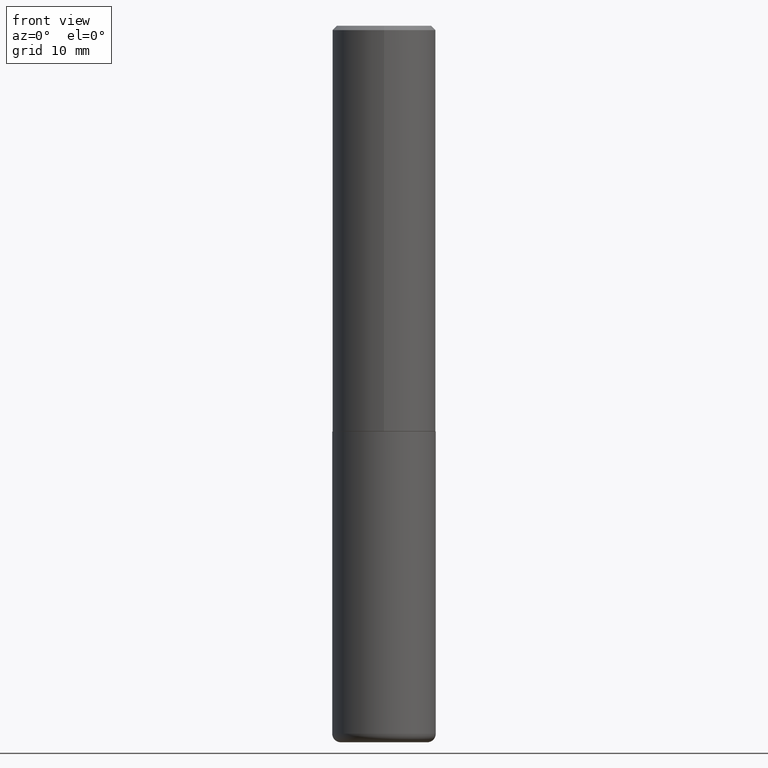
[diagram: clean part render]
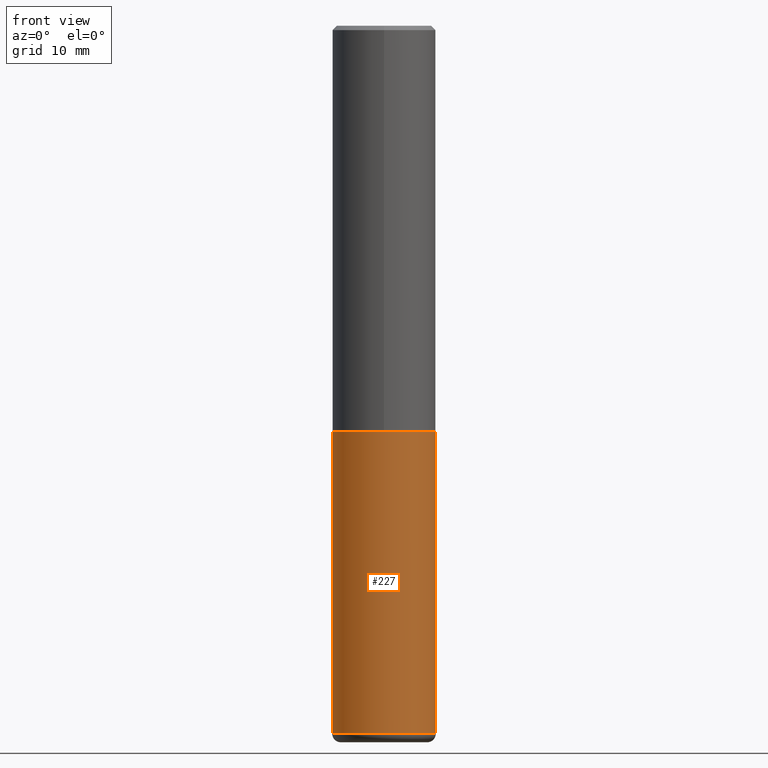
[diagram: same view with one face highlighted and labeled with its STEP entity id]
A machine part, front view. The second image highlights one B-rep face of the part: STEP entity #227.
In plain terms, the highlighted cylindrical surface (partial cylindrical patch) has radius 5.9995 mm, axis along (-0, 0, 1).
Its self-contained STEP definition (entity closure, byte-faithful):
#6 = EDGE_CURVE ( 'NONE', #405, #23, #16, .T. ) ;
#16 = CIRCLE ( 'NONE', #342, 0.2361999999999999933 ) ;
#23 = VERTEX_POINT ( 'NONE', #382 ) ;
#28 = CARTESIAN_POINT ( 'NONE',  ( 0.2362000000000000210, -1.292092499065682375E-14, -3.228299999999999947 ) ) ;
#32 = DIRECTION ( 'NONE',  ( 1.000000000000000000, -6.982962677686269077E-15, 0.000000000000000000 ) ) ;
#47 = VERTEX_POINT ( 'NONE', #198 ) ;
#92 = DIRECTION ( 'NONE',  ( -2.445468806185136597E-29, 3.491481338843145583E-15, 1.000000000000000000 ) ) ;
#119 = CARTESIAN_POINT ( 'NONE',  ( 0.000000000000000000, 0.000000000000000000, 0.000000000000000000 ) ) ;
#123 = LINE ( 'NONE', #319, #237 ) ;
#148 = VERTEX_POINT ( 'NONE', #28 ) ;
#150 = FACE_OUTER_BOUND ( 'NONE', #252, .T. ) ;
#152 = DIRECTION ( 'NONE',  ( -2.445468806185136877E-29, 3.491481338843145188E-15, 1.000000000000000000 ) ) ;
#155 = EDGE_CURVE ( 'NONE', #47, #148, #328, .T. ) ;
#163 = CARTESIAN_POINT ( 'NONE',  ( -0.2361999999999999933, -7.187791195925986796E-15, -1.850400000000000267 ) ) ;
#192 = CYLINDRICAL_SURFACE ( 'NONE', #386, 0.2361999999999999933 ) ;
#194 = EDGE_CURVE ( 'NONE', #47, #405, #245, .T. ) ;
#198 = CARTESIAN_POINT ( 'NONE',  ( -0.2362000000000000210, -9.593247264321970832E-15, -3.228299999999999947 ) ) ;
#203 = AXIS2_PLACEMENT_3D ( 'NONE', #384, #92, #281 ) ;
#213 = ORIENTED_EDGE ( 'NONE', *, *, #194, .F. ) ;
#227 = ADVANCED_FACE ( 'NONE', ( #150 ), #192, .T. ) ;
#237 = VECTOR ( 'NONE', #152, 39.37007874015748143 ) ;
#245 = LINE ( 'NONE', #410, #376 ) ;
#252 = EDGE_LOOP ( 'NONE', ( #213, #349, #373, #379 ) ) ;
#281 = DIRECTION ( 'NONE',  ( 1.000000000000000000, -6.982962677686265133E-15, 0.000000000000000000 ) ) ;
#313 = CARTESIAN_POINT ( 'NONE',  ( 4.525095478964977394E-29, -6.460637069395357576E-15, -1.850400000000000267 ) ) ;
#319 = CARTESIAN_POINT ( 'NONE',  ( 0.2361999999999999933, -1.649375784469496131E-15, 1.151752954443000088E-29 ) ) ;
#320 = DIRECTION ( 'NONE',  ( -2.445468806185136597E-29, 3.491481338843145583E-15, 1.000000000000000000 ) ) ;
#328 = CIRCLE ( 'NONE', #203, 0.2361999999999999933 ) ;
#342 = AXIS2_PLACEMENT_3D ( 'NONE', #313, #415, #32 ) ;
#344 = DIRECTION ( 'NONE',  ( 1.000000000000000000, -6.982962677686266711E-15, 4.876176775795936353E-29 ) ) ;
#349 = ORIENTED_EDGE ( 'NONE', *, *, #155, .T. ) ;
#370 = EDGE_CURVE ( 'NONE', #148, #23, #123, .T. ) ;
#372 = DIRECTION ( 'NONE',  ( -2.445468806185136877E-29, 3.491481338843145188E-15, 1.000000000000000000 ) ) ;
#373 = ORIENTED_EDGE ( 'NONE', *, *, #370, .T. ) ;
#376 = VECTOR ( 'NONE', #372, 39.37007874015748143 ) ;
#379 = ORIENTED_EDGE ( 'NONE', *, *, #6, .F. ) ;
#382 = CARTESIAN_POINT ( 'NONE',  ( 0.2361999999999999933, -8.110012853864854101E-15, -1.850400000000000267 ) ) ;
#384 = CARTESIAN_POINT ( 'NONE',  ( 7.894706947007477118E-29, -1.127154920618732880E-14, -3.228299999999999947 ) ) ;
#386 = AXIS2_PLACEMENT_3D ( 'NONE', #119, #320, #344 ) ;
#405 = VERTEX_POINT ( 'NONE', #163 ) ;
#410 = CARTESIAN_POINT ( 'NONE',  ( -0.2361999999999999933, 1.678301941865356591E-15, -1.161852468318208757E-29 ) ) ;
#415 = DIRECTION ( 'NONE',  ( -2.445468806185136597E-29, 3.491481338843145583E-15, 1.000000000000000000 ) ) ;